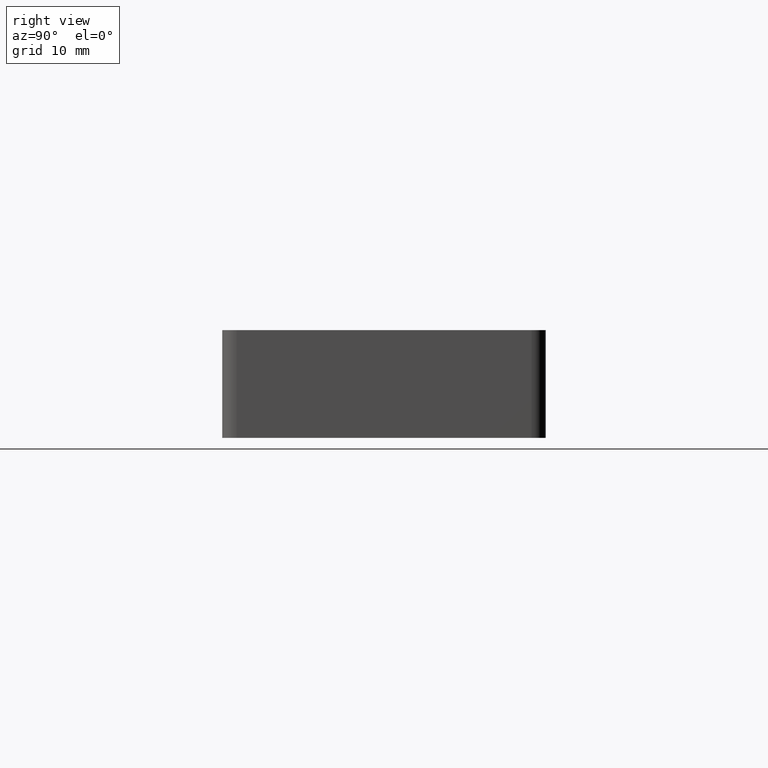
[diagram: clean part render]
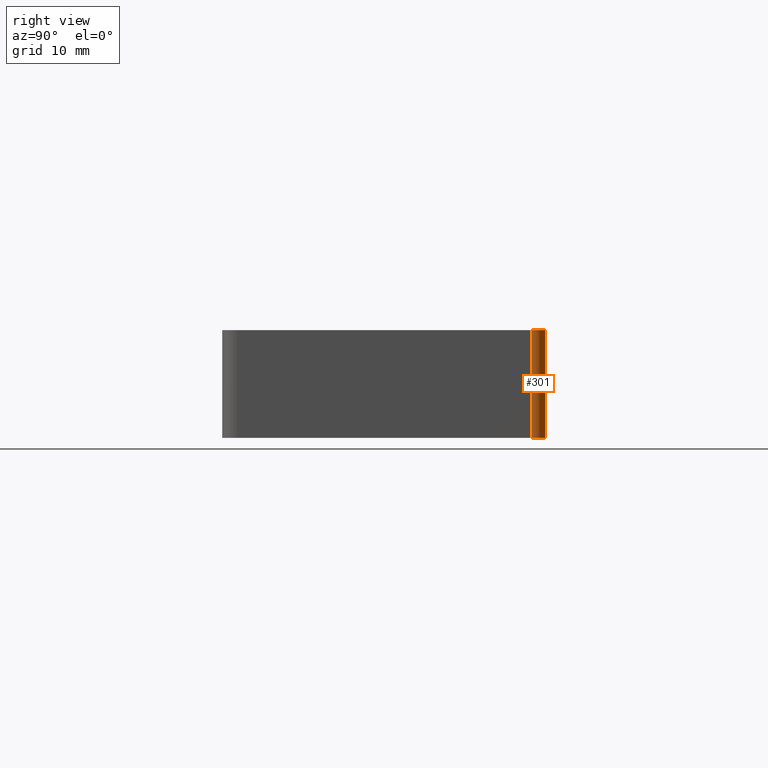
[diagram: same view with one face highlighted and labeled with its STEP entity id]
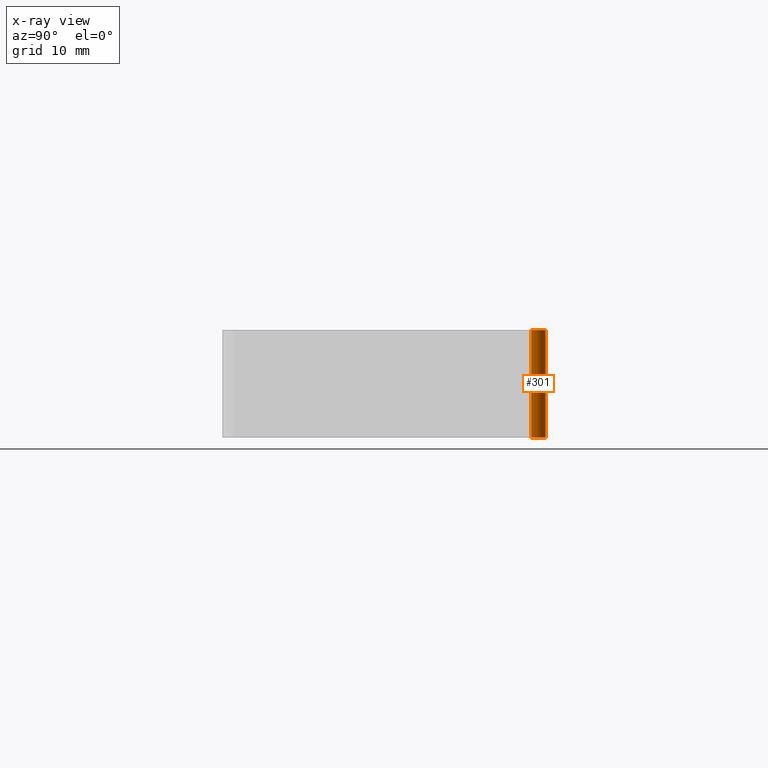
[diagram: x-ray of the same camera — body ghosted, the highlighted face saturated]
A machine part, right view. The second image highlights one B-rep face of the part: STEP entity #301.
The next image is the same camera in x-ray: the body ghosted, the highlighted face saturated — about 0% of this face is hidden behind the body in this view.
In plain terms, the highlighted cylindrical surface (edge-blend (fillet) strip) has radius 2 mm, axis along (0, 0, 1).
Its self-contained STEP definition (entity closure, byte-faithful):
#20=CYLINDRICAL_SURFACE('',#340,2.);
#31=LINE('',#494,#47);
#37=LINE('',#515,#53);
#47=VECTOR('',#401,15.);
#53=VECTOR('',#423,15.);
#90=FACE_OUTER_BOUND('',#120,.T.);
#120=EDGE_LOOP('',(#264,#265,#266,#267));
#135=CIRCLE('',#316,2.);
#147=CIRCLE('',#335,2.);
#156=VERTEX_POINT('',#456);
#157=VERTEX_POINT('',#458);
#170=VERTEX_POINT('',#492);
#175=VERTEX_POINT('',#504);
#184=EDGE_CURVE('',#157,#156,#135,.T.);
#200=EDGE_CURVE('',#156,#170,#31,.T.);
#206=EDGE_CURVE('',#170,#175,#147,.T.);
#211=EDGE_CURVE('',#175,#157,#37,.T.);
#264=ORIENTED_EDGE('',*,*,#184,.T.);
#265=ORIENTED_EDGE('',*,*,#200,.T.);
#266=ORIENTED_EDGE('',*,*,#206,.T.);
#267=ORIENTED_EDGE('',*,*,#211,.T.);
#301=ADVANCED_FACE('',(#90),#20,.T.);
#316=AXIS2_PLACEMENT_3D('',#459,#363,#364);
#335=AXIS2_PLACEMENT_3D('',#506,#411,#412);
#340=AXIS2_PLACEMENT_3D('',#516,#424,#425);
#363=DIRECTION('center_axis',(0.,0.,-1.));
#364=DIRECTION('ref_axis',(0.707106781186546,0.707106781186549,0.));
#401=DIRECTION('',(0.,0.,-1.));
#411=DIRECTION('center_axis',(0.,0.,1.));
#412=DIRECTION('ref_axis',(0.707106781186546,0.707106781186549,0.));
#423=DIRECTION('',(0.,0.,1.));
#424=DIRECTION('center_axis',(0.,0.,1.));
#425=DIRECTION('ref_axis',(0.707106781186546,0.707106781186549,0.));
#456=CARTESIAN_POINT('',(73.7824833985415,33.5678536302736,15.));
#458=CARTESIAN_POINT('',(71.7824833985415,35.5678536302736,15.));
#459=CARTESIAN_POINT('Origin',(71.7824833985415,33.5678536302736,15.));
#492=CARTESIAN_POINT('',(73.7824833985415,33.5678536302736,0.));
#494=CARTESIAN_POINT('',(73.7824833985415,33.5678536302736,15.));
#504=CARTESIAN_POINT('',(71.7824833985415,35.5678536302736,0.));
#506=CARTESIAN_POINT('Origin',(71.7824833985415,33.5678536302736,0.));
#515=CARTESIAN_POINT('',(71.7824833985415,35.5678536302736,0.));
#516=CARTESIAN_POINT('Origin',(71.7824833985415,33.5678536302736,0.));